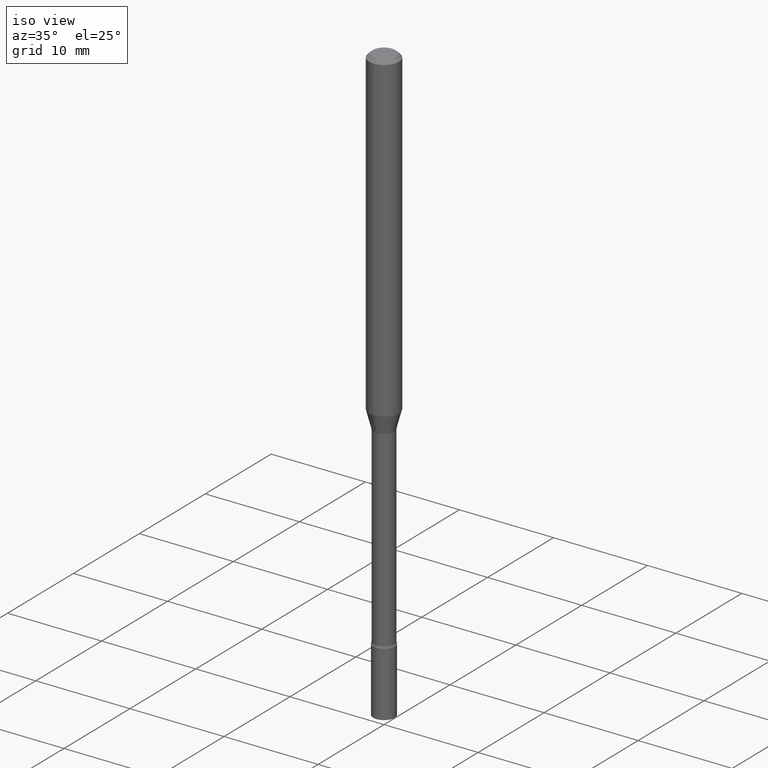
[diagram: clean part render]
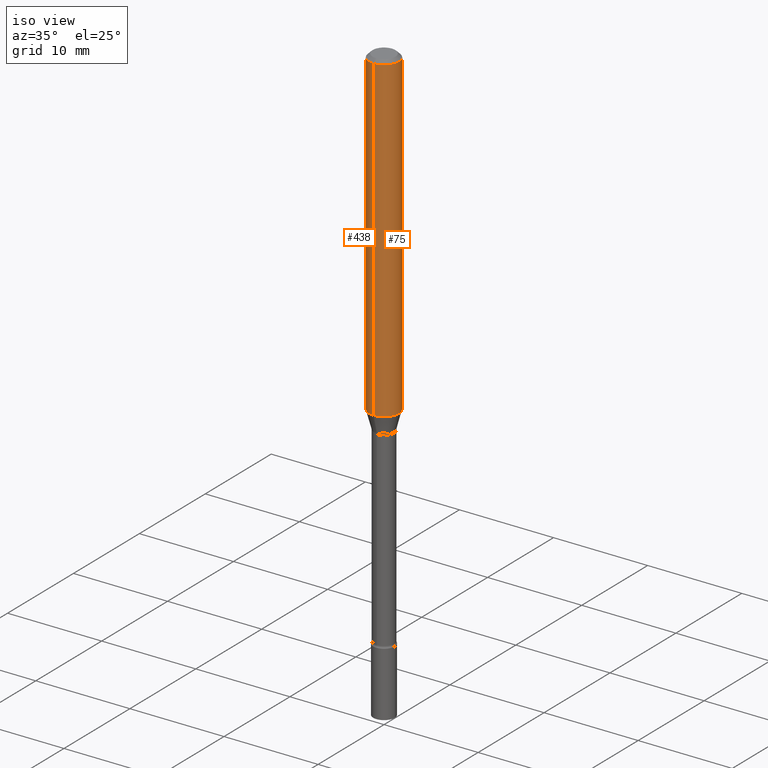
[diagram: same view with one multi-face feature highlighted, each face labeled with its STEP entity id]
A machine part, iso view. The highlighted faces form ONE feature: a constant-radius fillet chain: 2 tangent blend faces with common blend radius 1.5875 mm. The faces share edges in the B-rep.
Their STEP definitions:
[1] entity #438 (Cylinder):
#13 = AXIS2_PLACEMENT_3D ( 'NONE', #112, #309, #503 ) ;
#29 = FACE_OUTER_BOUND ( 'NONE', #49, .T. ) ;
#42 = EDGE_CURVE ( 'NONE', #409, #428, #276, .T. ) ;
#44 = CARTESIAN_POINT ( 'NONE',  ( -4.364351673553916201E-16, -0.06250000000000000000, 2.182248236472893667E-16 ) ) ;
#49 = EDGE_LOOP ( 'NONE', ( #211, #80, #297, #116 ) ) ;
#64 = CARTESIAN_POINT ( 'NONE',  ( 4.440892098500956497E-16, 0.06249999999999533706, -1.344612573687109514 ) ) ;
#73 = CARTESIAN_POINT ( 'NONE',  ( 3.668081873827822667E-31, -5.237395767534955229E-17, -0.01500000000000003067 ) ) ;
#80 = ORIENTED_EDGE ( 'NONE', *, *, #334, .T. ) ;
#102 = CIRCLE ( 'NONE', #470, 0.06250000000000000000 ) ;
#112 = CARTESIAN_POINT ( 'NONE',  ( 0.000000000000000000, 0.000000000000000000, 0.000000000000000000 ) ) ;
#116 = ORIENTED_EDGE ( 'NONE', *, *, #179, .F. ) ;
#153 = CARTESIAN_POINT ( 'NONE',  ( -4.364351673553584879E-16, -0.06250000000000466294, -1.344612573687108847 ) ) ;
#179 = EDGE_CURVE ( 'NONE', #240, #428, #102, .T. ) ;
#211 = ORIENTED_EDGE ( 'NONE', *, *, #229, .F. ) ;
#220 = DIRECTION ( 'NONE',  ( -6.982962677686265922E-15, -1.000000000000000000, 3.483106191921935554E-15 ) ) ;
#221 = DIRECTION ( 'NONE',  ( -6.982962677686265922E-15, -1.000000000000000000, 4.370956789862821150E-15 ) ) ;
#224 = LINE ( 'NONE', #505, #516 ) ;
#229 = EDGE_CURVE ( 'NONE', #414, #240, #224, .T. ) ;
#239 = DIRECTION ( 'NONE',  ( -2.445387915885210370E-29, 3.491597178356629473E-15, 1.000000000000000000 ) ) ;
#240 = VERTEX_POINT ( 'NONE', #466 ) ;
#260 = CYLINDRICAL_SURFACE ( 'NONE', #13, 0.06250000000000000000 ) ;
#276 = LINE ( 'NONE', #44, #383 ) ;
#297 = ORIENTED_EDGE ( 'NONE', *, *, #42, .T. ) ;
#302 = CARTESIAN_POINT ( 'NONE',  ( -4.364351673553912750E-16, -0.06250000000000005551, -0.01499999999999981209 ) ) ;
#309 = DIRECTION ( 'NONE',  ( -2.445387915885210370E-29, 3.491597178356629868E-15, 1.000000000000000000 ) ) ;
#334 = EDGE_CURVE ( 'NONE', #414, #409, #449, .T. ) ;
#346 = DIRECTION ( 'NONE',  ( -2.445387915885210370E-29, 3.491597178356629868E-15, 1.000000000000000000 ) ) ;
#371 = DIRECTION ( 'NONE',  ( -2.445387915885210370E-29, 3.491597178356629868E-15, 1.000000000000000000 ) ) ;
#383 = VECTOR ( 'NONE', #239, 39.37007874015748143 ) ;
#409 = VERTEX_POINT ( 'NONE', #153 ) ;
#414 = VERTEX_POINT ( 'NONE', #64 ) ;
#415 = CARTESIAN_POINT ( 'NONE',  ( 3.288099339241768682E-29, -4.694845468268757360E-15, -1.344612573687109069 ) ) ;
#428 = VERTEX_POINT ( 'NONE', #302 ) ;
#438 = ADVANCED_FACE ( 'NONE', ( #29 ), #260, .T. ) ;
#449 = CIRCLE ( 'NONE', #487, 0.06250000000000000000 ) ;
#464 = DIRECTION ( 'NONE',  ( -2.445387915885210370E-29, 3.491597178356629473E-15, 1.000000000000000000 ) ) ;
#466 = CARTESIAN_POINT ( 'NONE',  ( 4.440892098500956497E-16, 0.06249999999999993755, -0.01500000000000024751 ) ) ;
#470 = AXIS2_PLACEMENT_3D ( 'NONE', #73, #346, #220 ) ;
#487 = AXIS2_PLACEMENT_3D ( 'NONE', #415, #371, #221 ) ;
#503 = DIRECTION ( 'NONE',  ( -6.982962677686265922E-15, -1.000000000000000000, 3.491597178356629868E-15 ) ) ;
#505 = CARTESIAN_POINT ( 'NONE',  ( 4.440892098500625669E-16, 0.06250000000000000000, -2.182248236472893667E-16 ) ) ;
#516 = VECTOR ( 'NONE', #464, 39.37007874015748143 ) ;
[2] entity #75 (Cylinder):
#26 = CIRCLE ( 'NONE', #227, 0.06250000000000000000 ) ;
#31 = CARTESIAN_POINT ( 'NONE',  ( 3.668081873827822667E-31, -5.237395767534955229E-17, -0.01500000000000003067 ) ) ;
#42 = EDGE_CURVE ( 'NONE', #409, #428, #276, .T. ) ;
#44 = CARTESIAN_POINT ( 'NONE',  ( -4.364351673553916201E-16, -0.06250000000000000000, 2.182248236472893667E-16 ) ) ;
#57 = CARTESIAN_POINT ( 'NONE',  ( 0.000000000000000000, 0.000000000000000000, 0.000000000000000000 ) ) ;
#64 = CARTESIAN_POINT ( 'NONE',  ( 4.440892098500956497E-16, 0.06249999999999533706, -1.344612573687109514 ) ) ;
#75 = ADVANCED_FACE ( 'NONE', ( #247 ), #410, .T. ) ;
#78 = DIRECTION ( 'NONE',  ( -2.445387915885210370E-29, 3.491597178356629868E-15, 1.000000000000000000 ) ) ;
#95 = ORIENTED_EDGE ( 'NONE', *, *, #229, .T. ) ;
#150 = AXIS2_PLACEMENT_3D ( 'NONE', #31, #78, #237 ) ;
#153 = CARTESIAN_POINT ( 'NONE',  ( -4.364351673553584879E-16, -0.06250000000000466294, -1.344612573687108847 ) ) ;
#192 = EDGE_LOOP ( 'NONE', ( #256, #95, #321, #194 ) ) ;
#194 = ORIENTED_EDGE ( 'NONE', *, *, #42, .F. ) ;
#209 = DIRECTION ( 'NONE',  ( -6.982962677686265922E-15, -1.000000000000000000, 4.370956789862821150E-15 ) ) ;
#213 = DIRECTION ( 'NONE',  ( -2.445387915885210370E-29, 3.491597178356629868E-15, 1.000000000000000000 ) ) ;
#224 = LINE ( 'NONE', #505, #516 ) ;
#227 = AXIS2_PLACEMENT_3D ( 'NONE', #395, #318, #209 ) ;
#229 = EDGE_CURVE ( 'NONE', #414, #240, #224, .T. ) ;
#237 = DIRECTION ( 'NONE',  ( -6.982962677686265922E-15, -1.000000000000000000, 3.483106191921935554E-15 ) ) ;
#239 = DIRECTION ( 'NONE',  ( -2.445387915885210370E-29, 3.491597178356629473E-15, 1.000000000000000000 ) ) ;
#240 = VERTEX_POINT ( 'NONE', #466 ) ;
#247 = FACE_OUTER_BOUND ( 'NONE', #192, .T. ) ;
#256 = ORIENTED_EDGE ( 'NONE', *, *, #357, .T. ) ;
#276 = LINE ( 'NONE', #44, #383 ) ;
#279 = EDGE_CURVE ( 'NONE', #428, #240, #365, .T. ) ;
#302 = CARTESIAN_POINT ( 'NONE',  ( -4.364351673553912750E-16, -0.06250000000000005551, -0.01499999999999981209 ) ) ;
#318 = DIRECTION ( 'NONE',  ( -2.445387915885210370E-29, 3.491597178356629868E-15, 1.000000000000000000 ) ) ;
#321 = ORIENTED_EDGE ( 'NONE', *, *, #279, .F. ) ;
#357 = EDGE_CURVE ( 'NONE', #409, #414, #26, .T. ) ;
#365 = CIRCLE ( 'NONE', #150, 0.06250000000000000000 ) ;
#369 = DIRECTION ( 'NONE',  ( -6.982962677686265922E-15, -1.000000000000000000, 3.491597178356629868E-15 ) ) ;
#383 = VECTOR ( 'NONE', #239, 39.37007874015748143 ) ;
#395 = CARTESIAN_POINT ( 'NONE',  ( 3.288099339241768682E-29, -4.694845468268757360E-15, -1.344612573687109069 ) ) ;
#409 = VERTEX_POINT ( 'NONE', #153 ) ;
#410 = CYLINDRICAL_SURFACE ( 'NONE', #493, 0.06250000000000000000 ) ;
#414 = VERTEX_POINT ( 'NONE', #64 ) ;
#428 = VERTEX_POINT ( 'NONE', #302 ) ;
#464 = DIRECTION ( 'NONE',  ( -2.445387915885210370E-29, 3.491597178356629473E-15, 1.000000000000000000 ) ) ;
#466 = CARTESIAN_POINT ( 'NONE',  ( 4.440892098500956497E-16, 0.06249999999999993755, -0.01500000000000024751 ) ) ;
#493 = AXIS2_PLACEMENT_3D ( 'NONE', #57, #213, #369 ) ;
#505 = CARTESIAN_POINT ( 'NONE',  ( 4.440892098500625669E-16, 0.06250000000000000000, -2.182248236472893667E-16 ) ) ;
#516 = VECTOR ( 'NONE', #464, 39.37007874015748143 ) ;